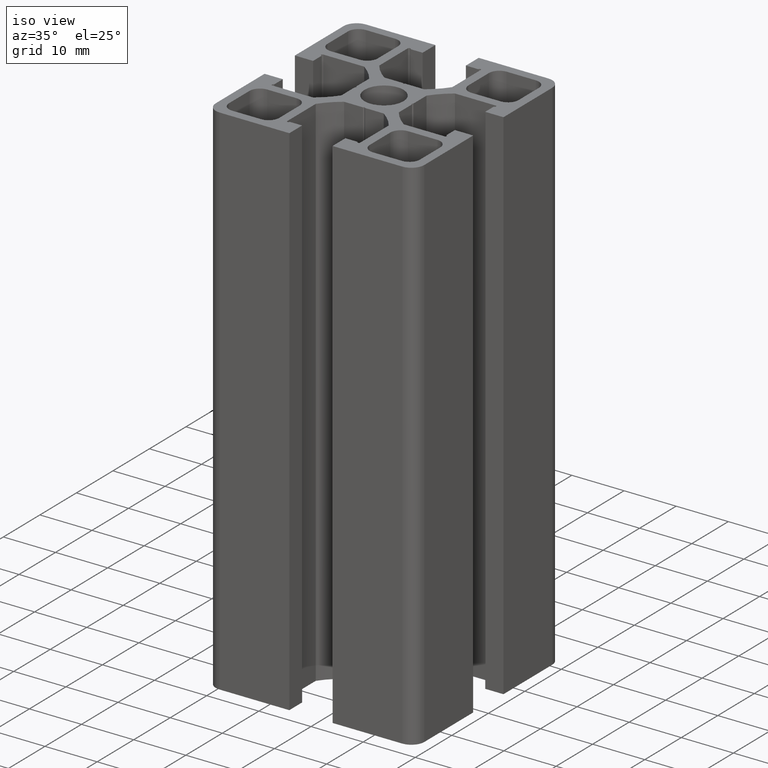
[diagram: clean part render]
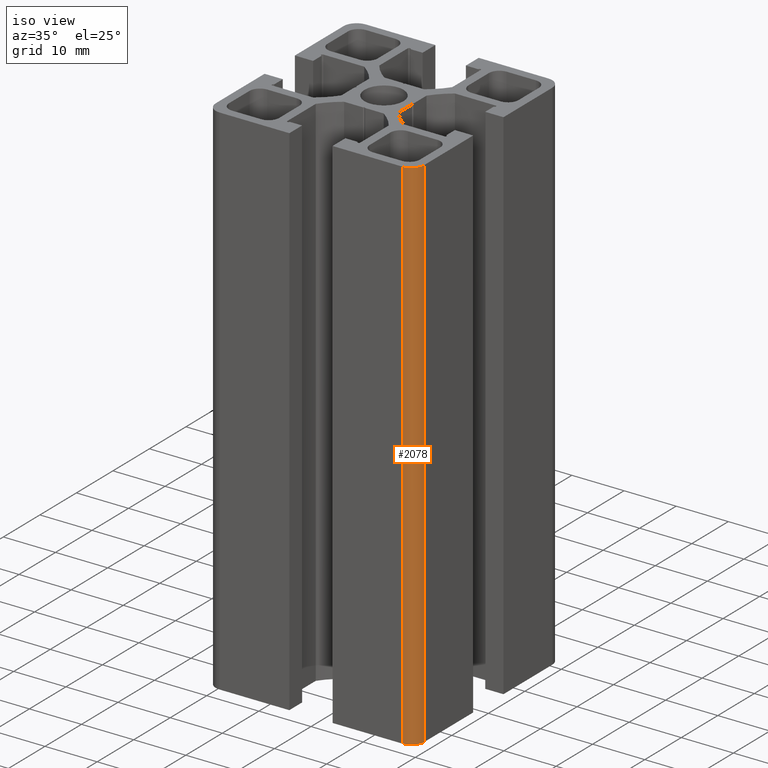
[diagram: same view with one face highlighted and labeled with its STEP entity id]
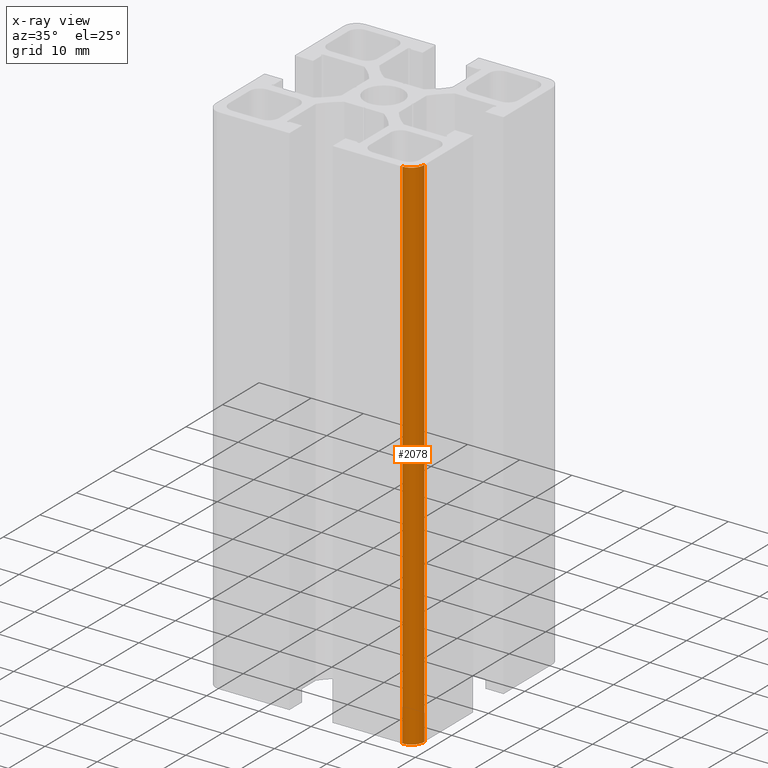
[diagram: x-ray of the same camera — body ghosted, the highlighted face saturated]
A machine part, iso view. The second image highlights one B-rep face of the part: STEP entity #2078.
The next image is the same camera in x-ray: the body ghosted, the highlighted face saturated — about 0% of this face is hidden behind the body in this view.
In plain terms, the highlighted cylindrical surface (edge-blend (fillet) strip) has radius 2.5 mm, axis along (0, 0, 1).
Its self-contained STEP definition (entity closure, byte-faithful):
#186=FACE_OUTER_BOUND('',#290,.T.);
#290=EDGE_LOOP('',(#1717,#1718,#1719,#1720));
#522=LINE('',#3416,#750);
#523=LINE('',#3422,#751);
#750=VECTOR('',#2805,100.);
#751=VECTOR('',#2812,100.);
#833=CIRCLE('',#2252,2.49999999999996);
#834=CIRCLE('',#2253,2.49999999999996);
#1027=VERTEX_POINT('',#3412);
#1028=VERTEX_POINT('',#3414);
#1029=VERTEX_POINT('',#3418);
#1030=VERTEX_POINT('',#3420);
#1322=EDGE_CURVE('',#1027,#1028,#522,.T.);
#1323=EDGE_CURVE('',#1029,#1027,#833,.T.);
#1324=EDGE_CURVE('',#1030,#1028,#834,.T.);
#1325=EDGE_CURVE('',#1029,#1030,#523,.T.);
#1717=ORIENTED_EDGE('',*,*,#1323,.T.);
#1718=ORIENTED_EDGE('',*,*,#1322,.T.);
#1719=ORIENTED_EDGE('',*,*,#1324,.F.);
#1720=ORIENTED_EDGE('',*,*,#1325,.F.);
#1981=CYLINDRICAL_SURFACE('',#2251,2.49999999999996);
#2078=ADVANCED_FACE('',(#186),#1981,.T.);
#2251=AXIS2_PLACEMENT_3D('',#3417,#2806,#2807);
#2252=AXIS2_PLACEMENT_3D('',#3419,#2808,#2809);
#2253=AXIS2_PLACEMENT_3D('',#3421,#2810,#2811);
#2805=DIRECTION('',(0.,0.,1.));
#2806=DIRECTION('center_axis',(0.,0.,1.));
#2807=DIRECTION('ref_axis',(0.,-1.,0.));
#2808=DIRECTION('center_axis',(0.,0.,1.));
#2809=DIRECTION('ref_axis',(0.,-1.,0.));
#2810=DIRECTION('center_axis',(0.,0.,1.));
#2811=DIRECTION('ref_axis',(0.,-1.,0.));
#2812=DIRECTION('',(0.,0.,1.));
#3412=CARTESIAN_POINT('',(19.9999999999999,-17.5,0.));
#3414=CARTESIAN_POINT('',(19.9999999999999,-17.5,100.));
#3416=CARTESIAN_POINT('',(19.9999999999999,-17.5,0.));
#3417=CARTESIAN_POINT('Origin',(17.4999999999999,-17.5000000000001,0.));
#3418=CARTESIAN_POINT('',(17.4999999999999,-20.,0.));
#3419=CARTESIAN_POINT('Origin',(17.4999999999999,-17.5000000000001,0.));
#3420=CARTESIAN_POINT('',(17.4999999999999,-20.,100.));
#3421=CARTESIAN_POINT('Origin',(17.4999999999999,-17.5000000000001,100.));
#3422=CARTESIAN_POINT('',(17.4999999999999,-20.,0.));